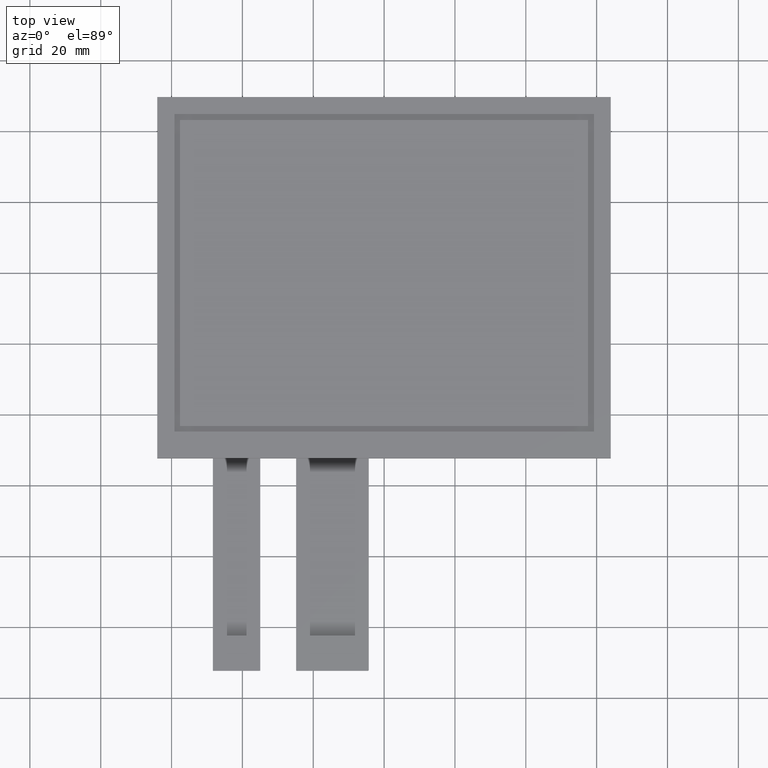
[diagram: clean part render]
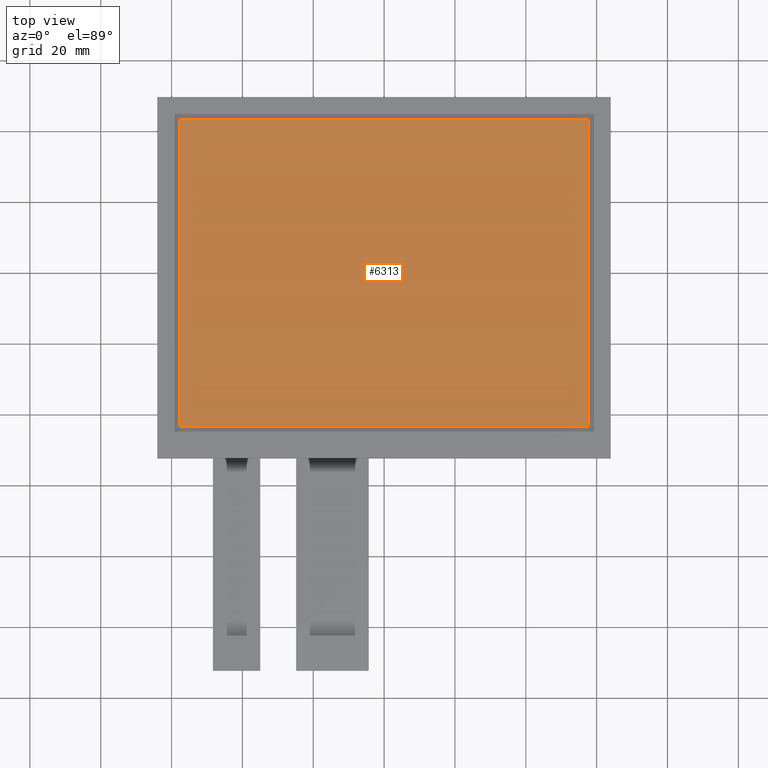
[diagram: same view with one face highlighted and labeled with its STEP entity id]
A machine part, top view. The second image highlights one B-rep face of the part: STEP entity #6313.
In plain terms, the highlighted planar face has unit normal (0, 0, 1).
Its self-contained STEP definition (entity closure, byte-faithful):
#375=PLANE('',#6643);
#677=FACE_OUTER_BOUND('',#983,.T.);
#983=EDGE_LOOP('',(#6001,#6002,#6003,#6004));
#1829=LINE('',#9857,#2709);
#1833=LINE('',#9865,#2713);
#1836=LINE('',#9871,#2716);
#1839=LINE('',#9876,#2719);
#2709=VECTOR('',#8081,10.);
#2713=VECTOR('',#8087,10.);
#2716=VECTOR('',#8092,10.);
#2719=VECTOR('',#8097,10.);
#3321=VERTEX_POINT('',#9855);
#3322=VERTEX_POINT('',#9856);
#3325=VERTEX_POINT('',#9864);
#3327=VERTEX_POINT('',#9870);
#4197=EDGE_CURVE('',#3321,#3322,#1829,.T.);
#4201=EDGE_CURVE('',#3325,#3321,#1833,.T.);
#4204=EDGE_CURVE('',#3327,#3325,#1836,.T.);
#4207=EDGE_CURVE('',#3322,#3327,#1839,.T.);
#6001=ORIENTED_EDGE('',*,*,#4197,.T.);
#6002=ORIENTED_EDGE('',*,*,#4207,.T.);
#6003=ORIENTED_EDGE('',*,*,#4204,.T.);
#6004=ORIENTED_EDGE('',*,*,#4201,.T.);
#6313=ADVANCED_FACE('',(#677),#375,.T.);
#6643=AXIS2_PLACEMENT_3D('',#9928,#8143,#8144);
#8081=DIRECTION('',(1.,7.70988211545248E-17,0.));
#8087=DIRECTION('',(0.,-1.,0.));
#8092=DIRECTION('',(-1.,7.70988211545248E-17,0.));
#8097=DIRECTION('',(0.,1.,0.));
#8143=DIRECTION('center_axis',(0.,0.,1.));
#8144=DIRECTION('ref_axis',(1.,0.,0.));
#9855=CARTESIAN_POINT('',(-57.6,-43.2,0.));
#9856=CARTESIAN_POINT('',(57.6,-43.2,0.));
#9857=CARTESIAN_POINT('',(-28.815,-43.2,0.));
#9864=CARTESIAN_POINT('',(-57.6,43.2,0.));
#9865=CARTESIAN_POINT('',(-57.6,20.945,0.));
#9870=CARTESIAN_POINT('',(57.6,43.2,0.));
#9871=CARTESIAN_POINT('',(28.785,43.2,0.));
#9876=CARTESIAN_POINT('',(57.6,-22.255,0.));
#9928=CARTESIAN_POINT('Origin',(-0.03000000000001,-1.31,0.));